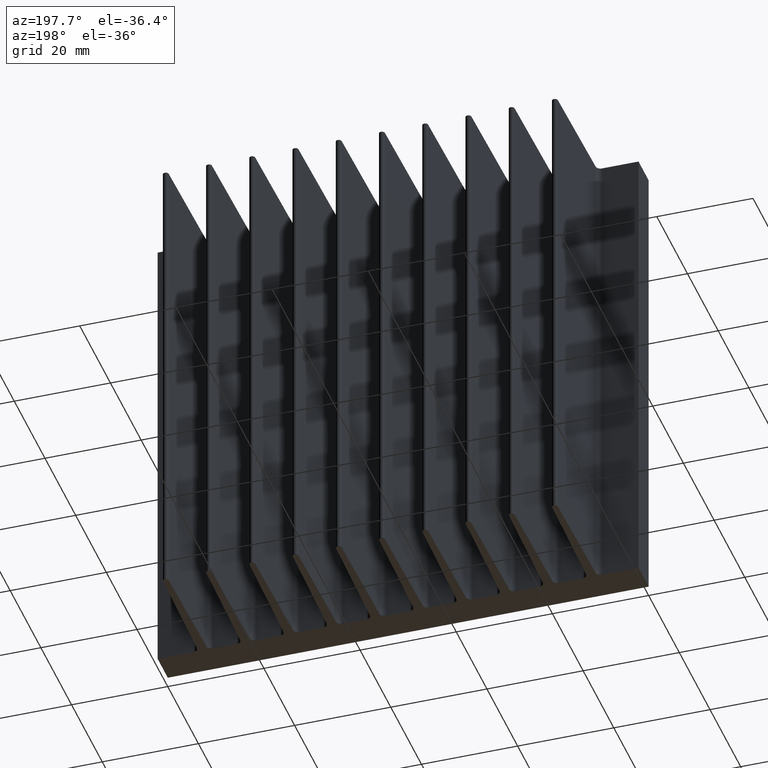
[diagram: clean part render]
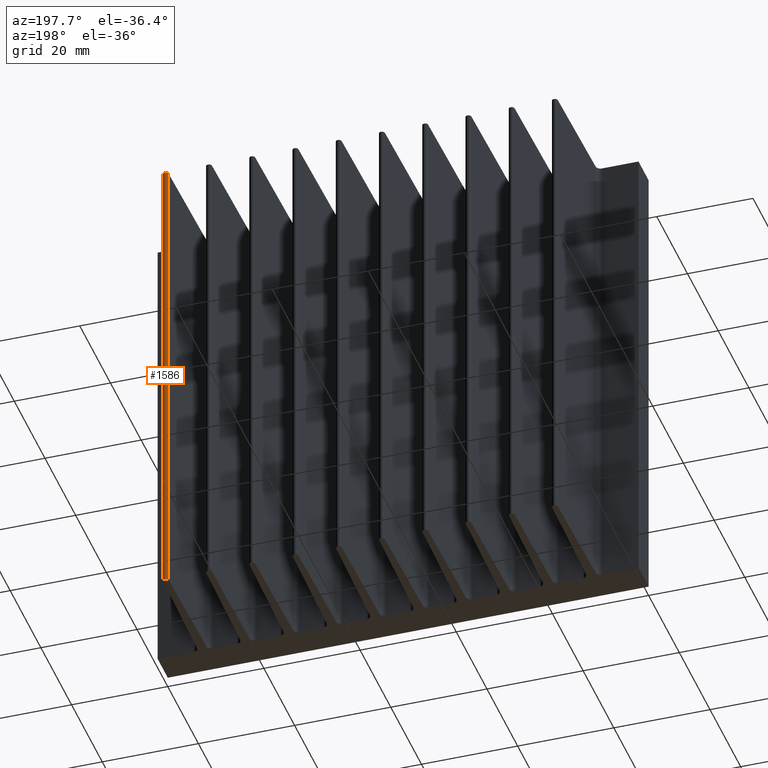
[diagram: same view with one face highlighted and labeled with its STEP entity id]
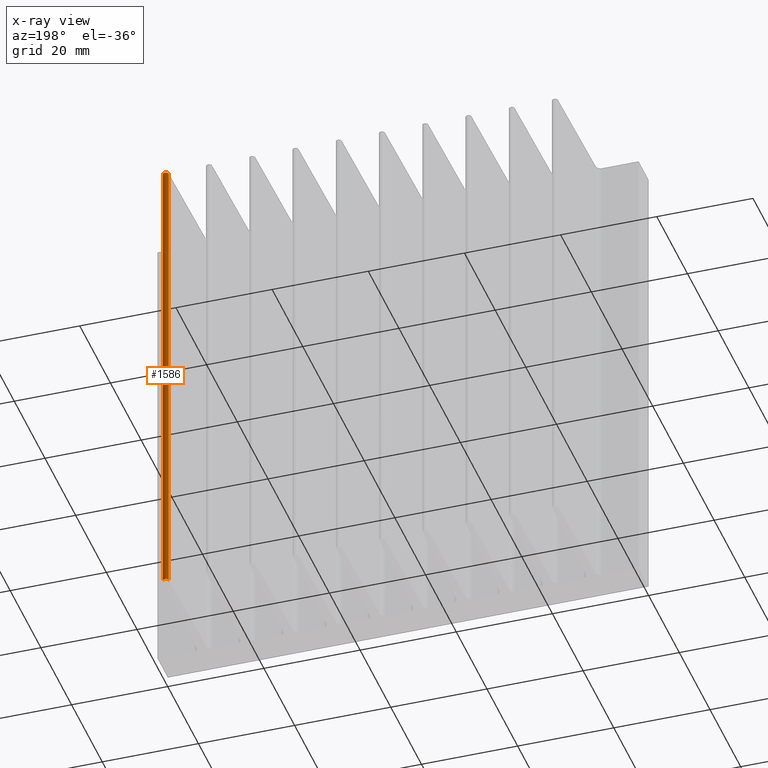
[diagram: x-ray of the same camera — body ghosted, the highlighted face saturated]
A machine part, auxiliary view. The second image highlights one B-rep face of the part: STEP entity #1586.
The next image is the same camera in x-ray: the body ghosted, the highlighted face saturated — about 0% of this face is hidden behind the body in this view.
In plain terms, the highlighted cylindrical surface (edge-blend (fillet) strip) has radius 0.5994 mm, axis along (-0, -0, -1).
Its self-contained STEP definition (entity closure, byte-faithful):
#23 = AXIS2_PLACEMENT_3D ( 'NONE', #2189, #2184, #2175 ) ;
#58 = LINE ( 'NONE', #1603, #214 ) ;
#63 = VERTEX_POINT ( 'NONE', #1279 ) ;
#176 = DIRECTION ( 'NONE',  ( -0.0000000000000000000, -0.0000000000000000000, -1.000000000000000000 ) ) ;
#180 = ORIENTED_EDGE ( 'NONE', *, *, #2151, .F. ) ;
#214 = VECTOR ( 'NONE', #1602, 1000.000000000000000 ) ;
#403 = ORIENTED_EDGE ( 'NONE', *, *, #1440, .T. ) ;
#458 = CIRCLE ( 'NONE', #23, 0.5994402985070729217 ) ;
#465 = CARTESIAN_POINT ( 'NONE',  ( 91.10830251045989314, 30.97108205391669244, 50.00000000000000000 ) ) ;
#470 = VERTEX_POINT ( 'NONE', #1746 ) ;
#477 = CARTESIAN_POINT ( 'NONE',  ( 89.90942191344575463, 30.97108205391637981, 50.00000000000000000 ) ) ;
#520 = CIRCLE ( 'NONE', #2206, 0.5994402985070729217 ) ;
#521 = VECTOR ( 'NONE', #176, 1000.000000000000000 ) ;
#546 = LINE ( 'NONE', #477, #521 ) ;
#577 = ORIENTED_EDGE ( 'NONE', *, *, #889, .T. ) ;
#663 = CYLINDRICAL_SURFACE ( 'NONE', #1026, 0.5994402985070729217 ) ;
#822 = EDGE_CURVE ( 'NONE', #1902, #63, #520, .T. ) ;
#889 = EDGE_CURVE ( 'NONE', #1902, #1598, #58, .T. ) ;
#893 = ORIENTED_EDGE ( 'NONE', *, *, #822, .F. ) ;
#1026 = AXIS2_PLACEMENT_3D ( 'NONE', #1593, #2004, #1640 ) ;
#1099 = EDGE_LOOP ( 'NONE', ( #403, #180, #893, #577 ) ) ;
#1199 = FACE_OUTER_BOUND ( 'NONE', #1099, .T. ) ;
#1279 = CARTESIAN_POINT ( 'NONE',  ( 89.90942191344575463, 30.97108205391637981, 50.00000000000000000 ) ) ;
#1387 = CARTESIAN_POINT ( 'NONE',  ( 91.10830251045989314, 30.97108205391669244, -50.00000000000000000 ) ) ;
#1440 = EDGE_CURVE ( 'NONE', #1598, #470, #458, .T. ) ;
#1586 = ADVANCED_FACE ( 'NONE', ( #1199 ), #663, .T. ) ;
#1593 = CARTESIAN_POINT ( 'NONE',  ( 90.50886221195283099, 30.97108205391667113, 50.00000000000000000 ) ) ;
#1598 = VERTEX_POINT ( 'NONE', #1387 ) ;
#1602 = DIRECTION ( 'NONE',  ( -0.0000000000000000000, -0.0000000000000000000, -1.000000000000000000 ) ) ;
#1603 = CARTESIAN_POINT ( 'NONE',  ( 91.10830251045989314, 30.97108205391669244, 50.00000000000000000 ) ) ;
#1640 = DIRECTION ( 'NONE',  ( -1.000000000000000000, 0.0000000000000000000, 0.0000000000000000000 ) ) ;
#1746 = CARTESIAN_POINT ( 'NONE',  ( 89.90942191344575463, 30.97108205391637981, -50.00000000000000000 ) ) ;
#1833 = DIRECTION ( 'NONE',  ( 1.000000000000000000, 0.0000000000000000000, 0.0000000000000000000 ) ) ;
#1848 = DIRECTION ( 'NONE',  ( 0.0000000000000000000, 0.0000000000000000000, 1.000000000000000000 ) ) ;
#1852 = CARTESIAN_POINT ( 'NONE',  ( 90.50886221195283099, 30.97108205391667113, 50.00000000000000000 ) ) ;
#1902 = VERTEX_POINT ( 'NONE', #465 ) ;
#2004 = DIRECTION ( 'NONE',  ( -0.0000000000000000000, -0.0000000000000000000, -1.000000000000000000 ) ) ;
#2151 = EDGE_CURVE ( 'NONE', #63, #470, #546, .T. ) ;
#2175 = DIRECTION ( 'NONE',  ( 1.000000000000000000, 0.0000000000000000000, 0.0000000000000000000 ) ) ;
#2184 = DIRECTION ( 'NONE',  ( 0.0000000000000000000, 0.0000000000000000000, 1.000000000000000000 ) ) ;
#2189 = CARTESIAN_POINT ( 'NONE',  ( 90.50886221195283099, 30.97108205391667113, -50.00000000000000000 ) ) ;
#2206 = AXIS2_PLACEMENT_3D ( 'NONE', #1852, #1848, #1833 ) ;